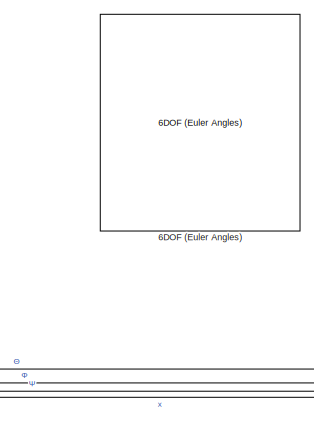
[diagram: root canvas - part 1/4, top center region]
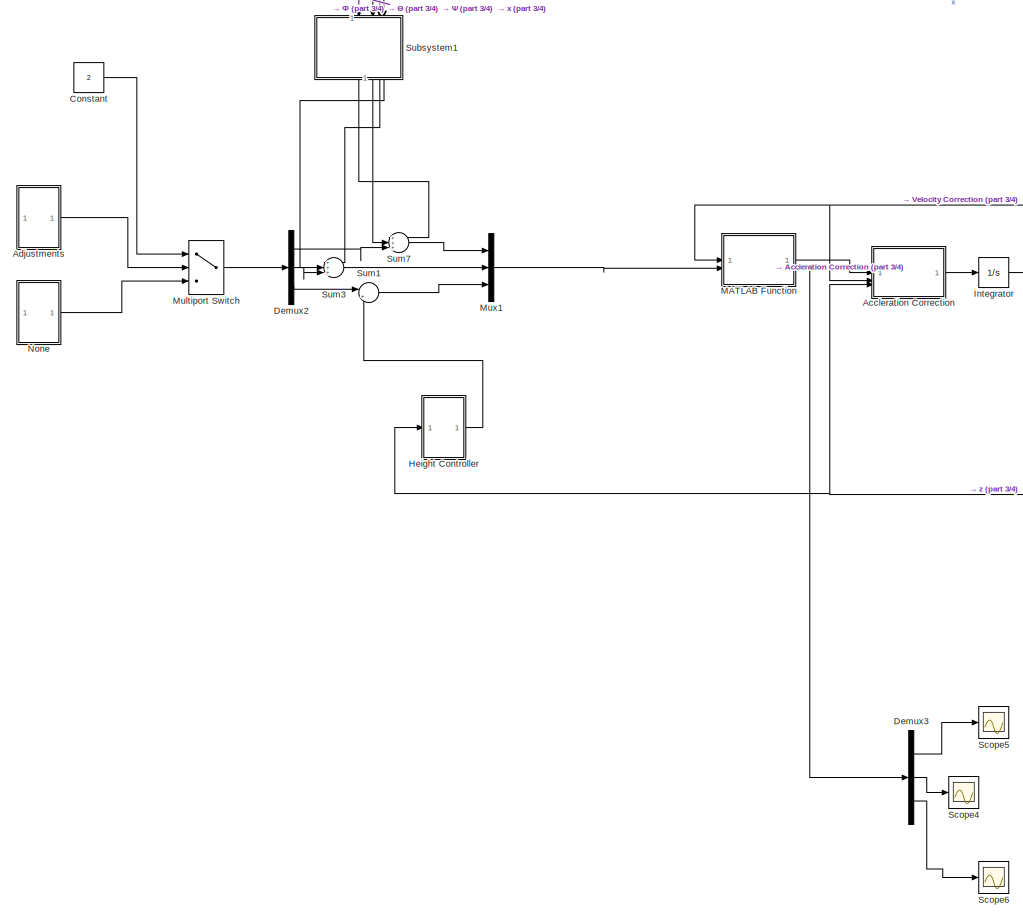
[diagram: root canvas - part 2/4, middle left region]
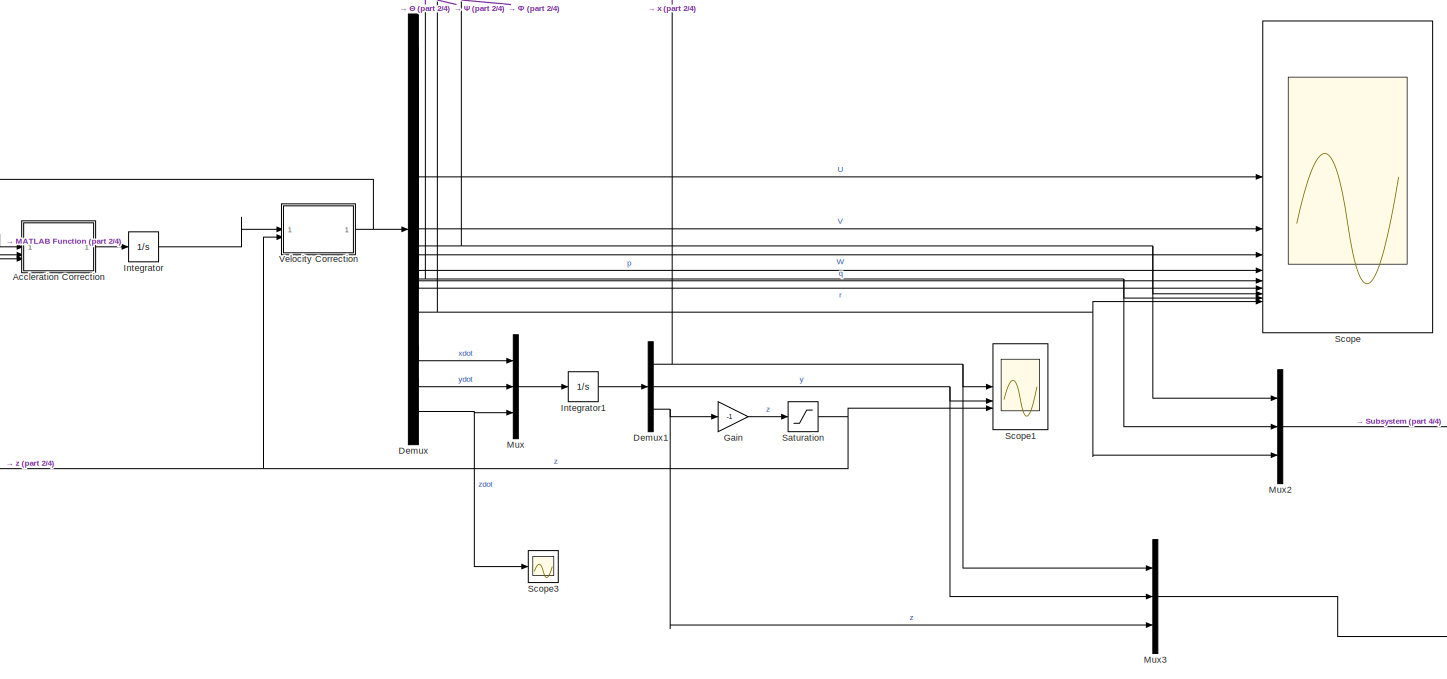
[diagram: root canvas - part 3/4, central region]
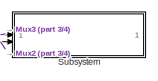
[diagram: root canvas - part 4/4, bottom right region]
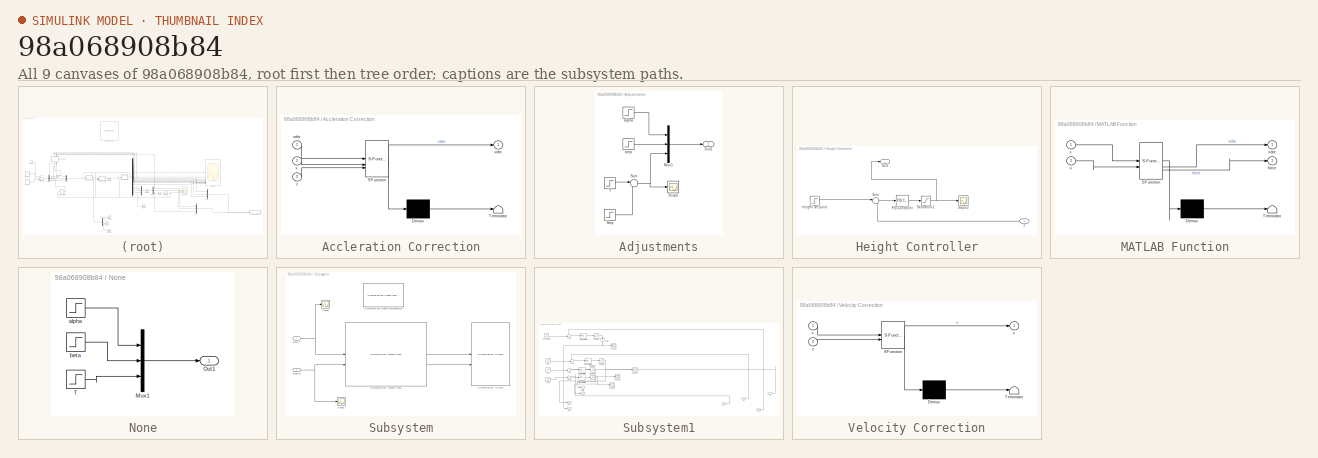
[diagram: thumbnail index - all 9 canvases of the model, root first then tree order]
MODEL slx_98a068908b84
KIND model
CONFIG AbsTol = auto
CONFIG EnableMultiTasking = off
CONFIG FixedStep = auto
CONFIG MaxStep = auto
CONFIG MinStep = auto
CONFIG RelTol = 1e-3
CONFIG SampleTimeConstraint = Unconstrained
CONFIG SolverName = VariableStepAuto
CONFIG StartTime = 0.0
CONFIG StopTime = 100
BLOCK [Reference] 6DOF (Euler Angles)  REF=shared6dof/6DOF (Euler Angles)
  LibrarySourceBlock = aerolib6dof2/6DOF (Euler Angles)
  SourceBlock = shared6dof/6DOF (Euler Angles)
  SourceType = 6DOF EoM (Body Axis)
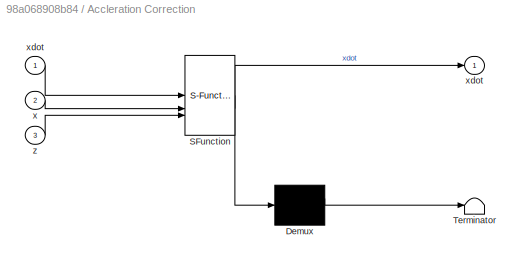
BLOCK [SubSystem] Accleration Correction
  ErrorFcn = Stateflow.Translate.translate
  PermitHierarchicalResolution = ExplicitOnly
  SFBlockType = MATLAB Function
  TreatAsAtomicUnit = on
BLOCK [Demux] Accleration Correction/ Demux 
  Outputs = 1
BLOCK [S-Function] Accleration Correction/ SFunction 
  EnableBusSupport = on
  FunctionName = sf_sfun
  PortCounts = [3 2]
  SFcnIsStateOwnerBlock = off
  SFunctionDeploymentMode = off
  Tag = Stateflow S-Function 1
BLOCK [Terminator] Accleration Correction/ Terminator 
BLOCK [Inport] Accleration Correction/x
  Port = 2
BLOCK [Outport] Accleration Correction/xdot
BLOCK [Inport] Accleration Correction/xdot 
BLOCK [Inport] Accleration Correction/z
  Port = 3
BLOCK [SubSystem] Adjustments
BLOCK [Mux] Adjustments/Mux1
  DisplayOption = bar
  Inputs = 3
BLOCK [Outport] Adjustments/Out1
BLOCK [Scope] Adjustments/Scope
  Floating = off
  NumInputPorts = 1
  ScopeSpecificationString = Simulink.scopes.TimeScopeBlockCfg('CurrentConfiguration', extmgr.ConfigurationSet(extmgr.Configuration('Core','General UI',true),extmgr.Configuration('Core','Source UI',true),extmgr.Configuration('Sources','WiredSimulink',true,'DataLoggingVariableName','ScopeData1'),extmgr.Configuration('Visuals','Time Domain',true,'SerializedDisplays',{struct('MinYLimReal','-187.5','MaxYLimReal','1687.5','YLabelR...<+1424ch>
BLOCK [Step] Adjustments/Step
  After = -1500
  SampleTime = 0
  Time = 10
BLOCK [Sum] Adjustments/Sum
  Inputs = |++
BLOCK [Step] Adjustments/T
  After = 1500
  SampleTime = 0
  Time = 0
BLOCK [Step] Adjustments/alpha
  After = pi/2
  SampleTime = 0
  Time = 0
BLOCK [Step] Adjustments/beta
  After = pi/2.001
  SampleTime = 0
  Time = 0
BLOCK [Constant] Constant
  Value = 2
BLOCK [Demux] Demux
  Outputs = 12
BLOCK [Demux] Demux1
  Outputs = 3
BLOCK [Demux] Demux2
  Outputs = 3
BLOCK [Demux] Demux3
  Outputs = 3
BLOCK [Gain] Gain
  Gain = -1
BLOCK [SubSystem] Height Controller
BLOCK [Outport] Height Controller/Out1
BLOCK [Reference] Height Controller/PID Controller  REF=slpidlib/PID Controller
  LibrarySourceBlock = simulink/Continuous/PID Controller
  SourceBlock = slpidlib/PID Controller
  SourceType = PID 1dof
BLOCK [Saturate] Height Controller/Saturation1
  LowerLimit = 0
  UpperLimit = 1500
BLOCK [Scope] Height Controller/Scope2
  Floating = off
  NumInputPorts = 1
  ScopeSpecificationString = Simulink.scopes.TimeScopeBlockCfg('CurrentConfiguration', extmgr.ConfigurationSet(extmgr.Configuration('Core','General UI',true),extmgr.Configuration('Core','Source UI',true),extmgr.Configuration('Sources','WiredSimulink',true,'DataLoggingVariableName','ScopeData1'),extmgr.Configuration('Visuals','Time Domain',true,'SerializedDisplays',{struct('MinYLimReal','-187.5','MaxYLimReal','1687.5','YLabelR...<+1432ch>
BLOCK [Sum] Height Controller/Sum
  Inputs = |+-
BLOCK [Step] Height Controller/heighit set point
  After = 100
  SampleTime = 0
BLOCK [Inport] Height Controller/z
BLOCK [Integrator] Integrator
  InitialCondition = [0;0;0;0;0;0;0;0;0;0;0;0]
BLOCK [Integrator] Integrator1
  InitialCondition = [0;0;0]
BLOCK [SubSystem] MATLAB Function
  ErrorFcn = Stateflow.Translate.translate
  PermitHierarchicalResolution = ExplicitOnly
  SFBlockType = MATLAB Function
  TreatAsAtomicUnit = on
BLOCK [Demux] MATLAB Function/ Demux 
  Outputs = 1
BLOCK [S-Function] MATLAB Function/ SFunction 
  EnableBusSupport = on
  FunctionName = sf_sfun
  PortCounts = [2 3]
  SFcnIsStateOwnerBlock = off
  SFunctionDeploymentMode = off
  Tag = Stateflow S-Function 2
BLOCK [Terminator] MATLAB Function/ Terminator 
BLOCK [Outport] MATLAB Function/force
  Port = 2
BLOCK [Inport] MATLAB Function/u
  Port = 2
BLOCK [Inport] MATLAB Function/x
BLOCK [Outport] MATLAB Function/xdot
BLOCK [MultiPortSwitch] Multiport Switch
  InputSameDT = off
  Inputs = 2
  SaturateOnIntegerOverflow = off
BLOCK [Mux] Mux
  DisplayOption = bar
  Inputs = 3
BLOCK [Mux] Mux1
  DisplayOption = bar
  Inputs = 3
BLOCK [Mux] Mux2
  DisplayOption = bar
  Inputs = 3
BLOCK [Mux] Mux3
  DisplayOption = bar
  Inputs = 3
BLOCK [SubSystem] None
BLOCK [Mux] None/Mux1
  DisplayOption = bar
  Inputs = 3
BLOCK [Outport] None/Out1
BLOCK [Step] None/T
  After = 0
  Commented = on
  SampleTime = 0
BLOCK [Step] None/alpha
  After = 0
  SampleTime = 0
  Time = 0
BLOCK [Step] None/beta
  After = pi/2.001
  SampleTime = 0
  Time = 0
BLOCK [Saturate] Saturation
  LowerLimit = 0
  UpperLimit = 10000000000000000000000000000000000000000000
BLOCK [Scope] Scope
  Floating = off
  NumInputPorts = 9
  ScopeSpecificationString = Simulink.scopes.TimeScopeBlockCfg('CurrentConfiguration', extmgr.ConfigurationSet(extmgr.Configuration('Core','General UI',true),extmgr.Configuration('Core','Source UI',true),extmgr.Configuration('Sources','WiredSimulink',true),extmgr.Configuration('Visuals','Time Domain',true,'SerializedDisplays',{struct('MinYLimReal','-3.03258','MaxYLimReal','3.00523','YLabelReal','','MinYLimMag','0.00000','MaxY...<+6926ch>
BLOCK [Scope] Scope1
  Floating = off
  NumInputPorts = 3
  ScopeSpecificationString = Simulink.scopes.TimeScopeBlockCfg('CurrentConfiguration', extmgr.ConfigurationSet(extmgr.Configuration('Core','General UI',true),extmgr.Configuration('Core','Source UI',true),extmgr.Configuration('Sources','WiredSimulink',true,'DataLoggingVariableName','ScopeData1'),extmgr.Configuration('Visuals','Time Domain',true,'SerializedDisplays',{struct('MinYLimReal','-15.1126','MaxYLimReal','118.34385','YL...<+1413ch>
BLOCK [Scope] Scope3
  Floating = off
  NumInputPorts = 1
  ScopeSpecificationString = Simulink.scopes.TimeScopeBlockCfg('CurrentConfiguration', extmgr.ConfigurationSet(extmgr.Configuration('Core','General UI',true),extmgr.Configuration('Core','Source UI',true),extmgr.Configuration('Sources','WiredSimulink',true,'DataLoggingVariableName','ScopeData2'),extmgr.Configuration('Visuals','Time Domain',true,'SerializedDisplays',{struct('MinYLimReal','-25.4379','MaxYLimReal','5.5388','YLabe...<+1429ch>
BLOCK [Scope] Scope4
  Floating = off
  NumInputPorts = 1
  ScopeSpecificationString = Simulink.scopes.TimeScopeBlockCfg('CurrentConfiguration', extmgr.ConfigurationSet(extmgr.Configuration('Core','General UI',true),extmgr.Configuration('Core','Source UI',true),extmgr.Configuration('Sources','WiredSimulink',true,'DataLoggingVariableName','ScopeData1'),extmgr.Configuration('Visuals','Time Domain',true,'SerializedDisplays',{struct('MinYLimReal','-350.05982','MaxYLimReal','342.59867','...<+1423ch>
BLOCK [Scope] Scope5
  Floating = off
  NumInputPorts = 1
  ScopeSpecificationString = Simulink.scopes.TimeScopeBlockCfg('CurrentConfiguration', extmgr.ConfigurationSet(extmgr.Configuration('Core','General UI',true),extmgr.Configuration('Core','Source UI',true),extmgr.Configuration('Sources','WiredSimulink',true,'DataLoggingVariableName','ScopeData2'),extmgr.Configuration('Visuals','Time Domain',true,'SerializedDisplays',{struct('MinYLimReal','-325.11306','MaxYLimReal','318.76025','...<+1423ch>
BLOCK [Scope] Scope6
  Floating = off
  NumInputPorts = 1
  ScopeSpecificationString = Simulink.scopes.TimeScopeBlockCfg('CurrentConfiguration', extmgr.ConfigurationSet(extmgr.Configuration('Core','General UI',true),extmgr.Configuration('Core','Source UI',true),extmgr.Configuration('Sources','WiredSimulink',true,'DataLoggingVariableName','ScopeData3'),extmgr.Configuration('Visuals','Time Domain',true,'SerializedDisplays',{struct('MinYLimReal','-7.06518','MaxYLimReal','11.68502','YLa...<+1410ch>
BLOCK [SubSystem] Subsystem
BLOCK [Inport] Subsystem/Body_R
  Port = 2
BLOCK [Inport] Subsystem/Body_T
BLOCK [Scope] Subsystem/Scope
  Floating = off
  NumInputPorts = 1
  ScopeSpecificationString = Simulink.scopes.TimeScopeBlockCfg('CurrentConfiguration', extmgr.ConfigurationSet(extmgr.Configuration('Core','General UI',true),extmgr.Configuration('Core','Source UI',true),extmgr.Configuration('Sources','WiredSimulink',true,'DataLoggingVariableName','ScopeData1'),extmgr.Configuration('Visuals','Time Domain',true,'SerializedDisplays',{struct('MinYLimReal','-165.70668','MaxYLimReal','301.46697','...<+1471ch>
BLOCK [Scope] Subsystem/Scope1
  Floating = off
  NumInputPorts = 1
  ScopeSpecificationString = Simulink.scopes.TimeScopeBlockCfg('CurrentConfiguration', extmgr.ConfigurationSet(extmgr.Configuration('Core','General UI',true),extmgr.Configuration('Core','Source UI',true),extmgr.Configuration('Sources','WiredSimulink',true,'DataLoggingVariableName','ScopeData1'),extmgr.Configuration('Visuals','Time Domain',true),extmgr.Configuration('Tools','Plot Navigation',true),extmgr.Configuration('Tools',...<+40ch>
BLOCK [Reference] Subsystem/Simulation 3D Aircraft  REF=aerolibsim3d/Simulation 3D Aircraft
  Priority = -1
  SourceBlock = aerolibsim3d/Simulation 3D Aircraft
  SourceType = Simulation 3D Aircraft
BLOCK [Reference] Subsystem/Simulation 3D Custom Pack  REF=aerolibsim3d/Simulation 3D Custom Pack
  SourceBlock = aerolibsim3d/Simulation 3D Custom Pack
  SourceType = Simulation 3D Custom Pack
BLOCK [Reference] Subsystem/Simulation 3D Scene Configuration  REF=sim3dlib/Simulation 3D Scene Configuration
  LibrarySourceBlock = aerolibsim3d/Simulation 3D Scene Configuration
  Priority = 0
  SourceBlock = sim3dlib/Simulation 3D Scene Configuration
  SourceType = Simulation 3D Scene Configuration
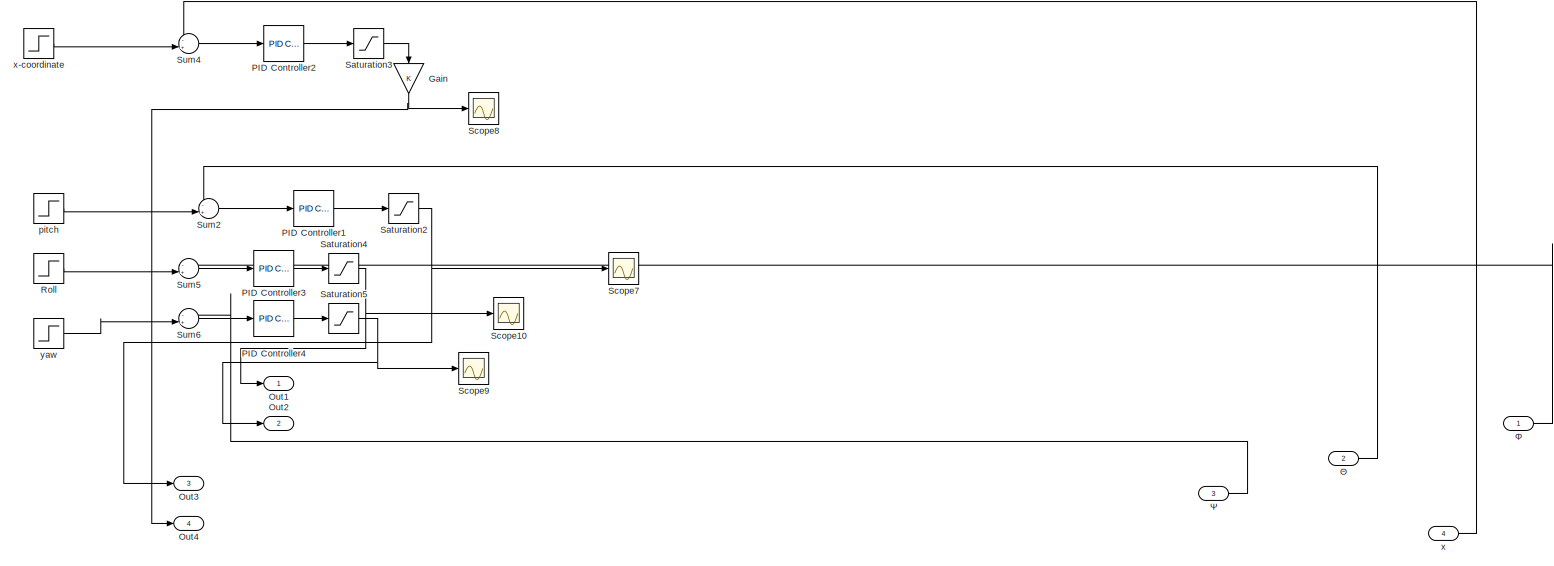
[diagram: Subsystem1 - part 1/1, most of the canvas]
BLOCK [SubSystem] Subsystem1
  NameLocation = left
BLOCK [Gain] Subsystem1/Gain
  NameLocation = left
BLOCK [Outport] Subsystem1/Out1
BLOCK [Outport] Subsystem1/Out2
  Port = 2
BLOCK [Outport] Subsystem1/Out3
  Port = 3
BLOCK [Outport] Subsystem1/Out4
  Port = 4
BLOCK [Reference] Subsystem1/PID Controller1  REF=slpidlib/PID Controller
  LibrarySourceBlock = simulink/Continuous/PID Controller
  SourceBlock = slpidlib/PID Controller
  SourceType = PID 1dof
BLOCK [Reference] Subsystem1/PID Controller2  REF=slpidlib/PID Controller
  LibrarySourceBlock = simulink/Continuous/PID Controller
  SourceBlock = slpidlib/PID Controller
  SourceType = PID 1dof
BLOCK [Reference] Subsystem1/PID Controller3  REF=slpidlib/PID Controller
  LibrarySourceBlock = simulink/Continuous/PID Controller
  SourceBlock = slpidlib/PID Controller
  SourceType = PID 1dof
BLOCK [Reference] Subsystem1/PID Controller4  REF=slpidlib/PID Controller
  LibrarySourceBlock = simulink/Continuous/PID Controller
  SourceBlock = slpidlib/PID Controller
  SourceType = PID 1dof
BLOCK [Step] Subsystem1/Roll
  SampleTime = 0
BLOCK [Saturate] Subsystem1/Saturation2
  LowerLimit = -pi/2
  UpperLimit = pi/2
BLOCK [Saturate] Subsystem1/Saturation3
  LowerLimit = -pi/2
  UpperLimit = pi/2
BLOCK [Saturate] Subsystem1/Saturation4
  LowerLimit = -pi
  UpperLimit = pi
BLOCK [Saturate] Subsystem1/Saturation5
  LowerLimit = -pi
  UpperLimit = pi
BLOCK [Scope] Subsystem1/Scope10
  Floating = off
  NumInputPorts = 1
  ScopeSpecificationString = Simulink.scopes.TimeScopeBlockCfg('CurrentConfiguration', extmgr.ConfigurationSet(extmgr.Configuration('Core','General UI',true),extmgr.Configuration('Core','Source UI',true),extmgr.Configuration('Sources','WiredSimulink',true,'DataLoggingVariableName','ScopeData4'),extmgr.Configuration('Visuals','Time Domain',true,'SerializedDisplays',{struct('MinYLimReal','-1.00000','MaxYLimReal','1.00000','YLab...<+1438ch>
BLOCK [Scope] Subsystem1/Scope7
  Floating = off
  NumInputPorts = 1
  ScopeSpecificationString = Simulink.scopes.TimeScopeBlockCfg('CurrentConfiguration', extmgr.ConfigurationSet(extmgr.Configuration('Core','General UI',true),extmgr.Configuration('Core','Source UI',true),extmgr.Configuration('Sources','WiredSimulink',true,'DataLoggingVariableName','ScopeData1'),extmgr.Configuration('Visuals','Time Domain',true,'SerializedDisplays',{struct('MinYLimReal','-0.02765','MaxYLimReal','0.02106','YLab...<+1438ch>
BLOCK [Scope] Subsystem1/Scope8
  Floating = off
  NumInputPorts = 1
  ScopeSpecificationString = Simulink.scopes.TimeScopeBlockCfg('CurrentConfiguration', extmgr.ConfigurationSet(extmgr.Configuration('Core','General UI',true),extmgr.Configuration('Core','Source UI',true),extmgr.Configuration('Sources','WiredSimulink',true,'DataLoggingVariableName','ScopeData2'),extmgr.Configuration('Visuals','Time Domain',true,'SerializedDisplays',{struct('MinYLimReal','-0.29872','MaxYLimReal','0.29234','YLab...<+1438ch>
BLOCK [Scope] Subsystem1/Scope9
  Floating = off
  NumInputPorts = 1
  ScopeSpecificationString = Simulink.scopes.TimeScopeBlockCfg('CurrentConfiguration', extmgr.ConfigurationSet(extmgr.Configuration('Core','General UI',true),extmgr.Configuration('Core','Source UI',true),extmgr.Configuration('Sources','WiredSimulink',true,'DataLoggingVariableName','ScopeData3'),extmgr.Configuration('Visuals','Time Domain',true,'SerializedDisplays',{struct('MinYLimReal','-1.00000','MaxYLimReal','1.00000','YLab...<+1438ch>
BLOCK [Sum] Subsystem1/Sum2
  Inputs = -+|
BLOCK [Sum] Subsystem1/Sum4
  Inputs = -+|
BLOCK [Sum] Subsystem1/Sum5
  Inputs = -+|
BLOCK [Sum] Subsystem1/Sum6
  Inputs = -+|
BLOCK [Step] Subsystem1/pitch
  After = 0
  SampleTime = 0
  Time = 0
BLOCK [Inport] Subsystem1/x
  Port = 4
BLOCK [Step] Subsystem1/x-coordinate
  After = 0
  SampleTime = 0
  Time = 0
BLOCK [Step] Subsystem1/yaw
  SampleTime = 0
BLOCK [Inport] Subsystem1/Θ
  Port = 2
BLOCK [Inport] Subsystem1/Φ
BLOCK [Inport] Subsystem1/Ψ
  Port = 3
BLOCK [Sum] Sum1
  Inputs = |++
BLOCK [Sum] Sum3
  Inputs = +++|
BLOCK [Sum] Sum7
  Inputs = +++|
BLOCK [SubSystem] Velocity Correction
  ErrorFcn = Stateflow.Translate.translate
  PermitHierarchicalResolution = ExplicitOnly
  SFBlockType = MATLAB Function
  TreatAsAtomicUnit = on
BLOCK [Demux] Velocity Correction/ Demux 
  Outputs = 1
BLOCK [S-Function] Velocity Correction/ SFunction 
  EnableBusSupport = on
  FunctionName = sf_sfun
  PortCounts = [2 2]
  SFcnIsStateOwnerBlock = off
  SFunctionDeploymentMode = off
  Tag = Stateflow S-Function 4
BLOCK [Terminator] Velocity Correction/ Terminator 
BLOCK [Outport] Velocity Correction/x
BLOCK [Inport] Velocity Correction/x 
BLOCK [Inport] Velocity Correction/z
  Port = 2
LINE Accleration Correction:1 -> Integrator:1
LINE Adjustments/Mux1:1 -> Adjustments/Out1:1
LINE Adjustments/Step:1 -> Adjustments/Sum:2
NET Adjustments/Sum:1 -> Adjustments/Mux1:3, Adjustments/Scope:1
LINE Adjustments/T:1 -> Adjustments/Sum:1
LINE Adjustments/alpha:1 -> Adjustments/Mux1:1
LINE Adjustments/beta:1 -> Adjustments/Mux1:2
LINE Adjustments:1 -> Multiport Switch:2
LINE Constant:1 -> Multiport Switch:1
NET Demux1:1 -> Mux3:1, Scope1:1, Subsystem1:4
NET Demux1:2 -> Mux3:2, Scope1:2
NET Demux1:3 -> Gain:1, Mux3:3
LINE Demux2:1 -> Sum7:3
LINE Demux2:2 -> Sum3:3
LINE Demux2:3 -> Sum1:1
LINE Demux3:1 -> Scope5:1
LINE Demux3:2 -> Scope4:1
LINE Demux3:3 -> Scope6:1
LINE Demux:1 -> Scope:1
LINE Demux:10 -> Mux:1
LINE Demux:11 -> Mux:2
NET Demux:12 -> Mux:3, Scope3:1
LINE Demux:2 -> Scope:2
LINE Demux:3 -> Scope:3
LINE Demux:4 -> Scope:4
LINE Demux:5 -> Scope:5
LINE Demux:6 -> Scope:6
NET Demux:7 -> Mux2:1, Scope:7, Subsystem1:1
NET Demux:8 -> Mux2:2, Scope:8, Subsystem1:2
NET Demux:9 -> Mux2:3, Scope:9, Subsystem1:3
LINE Gain:1 -> Saturation:1
LINE Height Controller/PID Controller:1 -> Height Controller/Saturation1:1
NET Height Controller/Saturation1:1 -> Height Controller/Out1:1, Height Controller/Scope2:1
LINE Height Controller/Sum:1 -> Height Controller/PID Controller:1
LINE Height Controller/heighit set point:1 -> Height Controller/Sum:1
LINE Height Controller/z:1 -> Height Controller/Sum:2
LINE Height Controller:1 -> Sum1:2
LINE Integrator1:1 -> Demux1:1
LINE Integrator:1 -> Velocity Correction:1
LINE MATLAB Function:1 -> Accleration Correction:1
LINE MATLAB Function:2 -> Demux3:1
LINE Multiport Switch:1 -> Demux2:1
LINE Mux1:1 -> MATLAB Function:2
LINE Mux2:1 -> Subsystem:2
LINE Mux3:1 -> Subsystem:1
LINE Mux:1 -> Integrator1:1
LINE None/Mux1:1 -> None/Out1:1
LINE None/T:1 -> None/Mux1:3
LINE None/alpha:1 -> None/Mux1:1
LINE None/beta:1 -> None/Mux1:2
LINE None:1 -> Multiport Switch:3
NET Saturation:1 -> Accleration Correction:3, Height Controller:1, Scope1:3, Velocity Correction:2
NET Subsystem/Body_R:1 -> Subsystem/Scope1:1, Subsystem/Simulation 3D Custom Pack:2
NET Subsystem/Body_T:1 -> Subsystem/Scope:1, Subsystem/Simulation 3D Custom Pack:1
LINE Subsystem/Simulation 3D Custom Pack:1 -> Subsystem/Simulation 3D Aircraft:1
LINE Subsystem/Simulation 3D Custom Pack:2 -> Subsystem/Simulation 3D Aircraft:2
NET Subsystem1/Gain:1 -> Subsystem1/Out4:1, Subsystem1/Scope8:1
LINE Subsystem1/PID Controller1:1 -> Subsystem1/Saturation2:1
LINE Subsystem1/PID Controller2:1 -> Subsystem1/Saturation3:1
LINE Subsystem1/PID Controller3:1 -> Subsystem1/Saturation4:1
LINE Subsystem1/PID Controller4:1 -> Subsystem1/Saturation5:1
LINE Subsystem1/Roll:1 -> Subsystem1/Sum5:2
NET Subsystem1/Saturation2:1 -> Subsystem1/Out3:1, Subsystem1/Scope7:1
LINE Subsystem1/Saturation3:1 -> Subsystem1/Gain:1
NET Subsystem1/Saturation4:1 -> Subsystem1/Out1:1, Subsystem1/Scope10:1
NET Subsystem1/Saturation5:1 -> Subsystem1/Out2:1, Subsystem1/Scope9:1
LINE Subsystem1/Sum2:1 -> Subsystem1/PID Controller1:1
LINE Subsystem1/Sum4:1 -> Subsystem1/PID Controller2:1
LINE Subsystem1/Sum5:1 -> Subsystem1/PID Controller3:1
LINE Subsystem1/Sum6:1 -> Subsystem1/PID Controller4:1
LINE Subsystem1/pitch:1 -> Subsystem1/Sum2:2
LINE Subsystem1/x-coordinate:1 -> Subsystem1/Sum4:2
LINE Subsystem1/x:1 -> Subsystem1/Sum4:1
LINE Subsystem1/yaw:1 -> Subsystem1/Sum6:2
LINE Subsystem1/Θ:1 -> Subsystem1/Sum2:1
LINE Subsystem1/Φ:1 -> Subsystem1/Sum5:1
LINE Subsystem1/Ψ:1 -> Subsystem1/Sum6:1
LINE Subsystem1:1 -> Sum7:1
LINE Subsystem1:2 -> Sum7:2
LINE Subsystem1:3 -> Sum3:1
LINE Subsystem1:4 -> Sum3:2
LINE Sum1:1 -> Mux1:3
LINE Sum3:1 -> Mux1:2
LINE Sum7:1 -> Mux1:1
NET Velocity Correction:1 -> Accleration Correction:2, Demux:1, MATLAB Function:1
note: NET lines group one-source signal fan-out (src -> all destinations, sorted); 1:1 wires keep LINE
CHART Accleration Correction states=1 transitions=1
  STATE_LABEL 'eML_blk_kernel()'
  STATE_LABEL 'SCRIPT:\nfunction xdot = fcn(xdot,x, z)\n\nphi=x(7);\ntheta=x(8);\npsi=x(9);\nT_etob=[cos(theta)*cos(psi),cos(theta)*sin(psi),-sin(theta);\n    sin(theta)*sin(phi)*cos(phi)-sin(psi)*cos(phi),sin(psi)*sin(theta)*sin(phi)+cos(psi)*cos(phi), sin(phi)*cos(theta);\n    sin(theta)*cos(phi)*cos(psi)+sin(psi)*sin(phi), sin(phi)*sin(theta)*cos(phi)-cos(psi)*sin(theta), cos(phi)*cos(theta)];\nzddot=xdot(end);\n\nif z ...<+140ch>'
CHART MATLAB Function states=1 transitions=1
  STATE_LABEL 'eML_blk_kernel()'
  STATE_LABEL 'SCRIPT:\nfunction [xdot,force]  = fcn(x, u)\n%{\nTakes in thrust, angles of thrust, x and outputs xdot\nBody axis is defined as z being the in the direction of gravity when pitch\nis zero\n\nm - mass-kg\nI - moment of intertia - kg m^2\ncg - centre of gravity - m\nthrust position - m\nU - body axis x velocity - m/s\nV - body axis y velocity - m/s\nW - body axis z velocity - m/s\np - body axis roll rate - rad/s\n...<+2241ch>'
CHART Velocity Correction states=1 transitions=1
  STATE_LABEL 'eML_blk_kernel()'
  STATE_LABEL 'SCRIPT:\nfunction x = fcn(x, z)\n\nphi=x(7);\ntheta=x(8);\npsi=x(9);\nT_etob=[cos(theta)*cos(psi),cos(theta)*sin(psi),-sin(theta);\n    sin(theta)*sin(phi)*cos(phi)-sin(psi)*cos(phi),sin(psi)*sin(theta)*sin(phi)+cos(psi)*cos(phi), sin(phi)*cos(theta);\n    sin(theta)*cos(phi)*cos(psi)+sin(psi)*sin(phi), sin(phi)*sin(theta)*cos(phi)-cos(psi)*sin(theta), cos(phi)*cos(theta)];\nzdot=x(end);\n\nif z <= 0 && zdot...<+142ch>'
CHART  states=0 transitions=0
CHART  states=0 transitions=0
CHART  states=0 transitions=0
